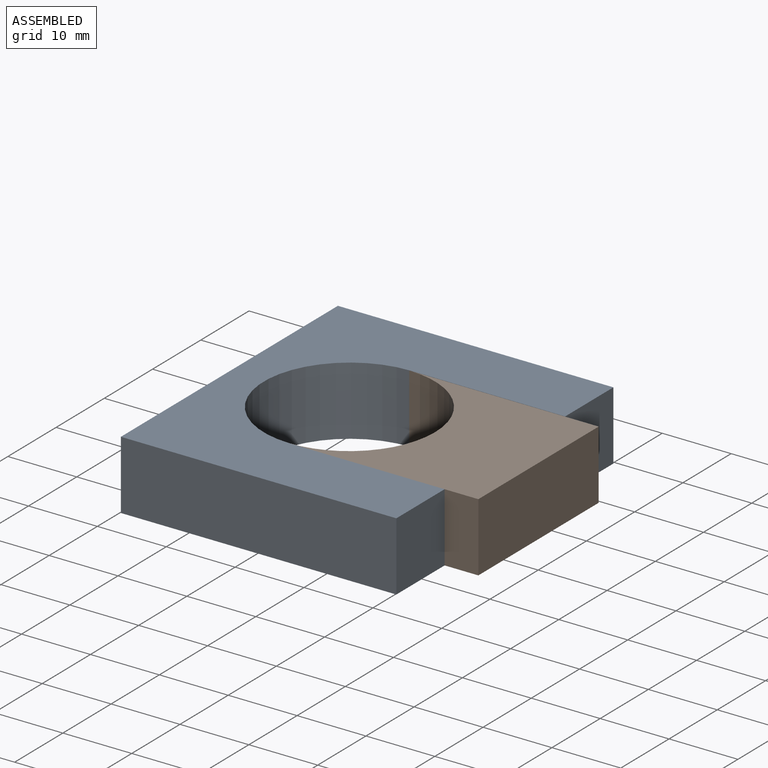
[diagram: assembled view]
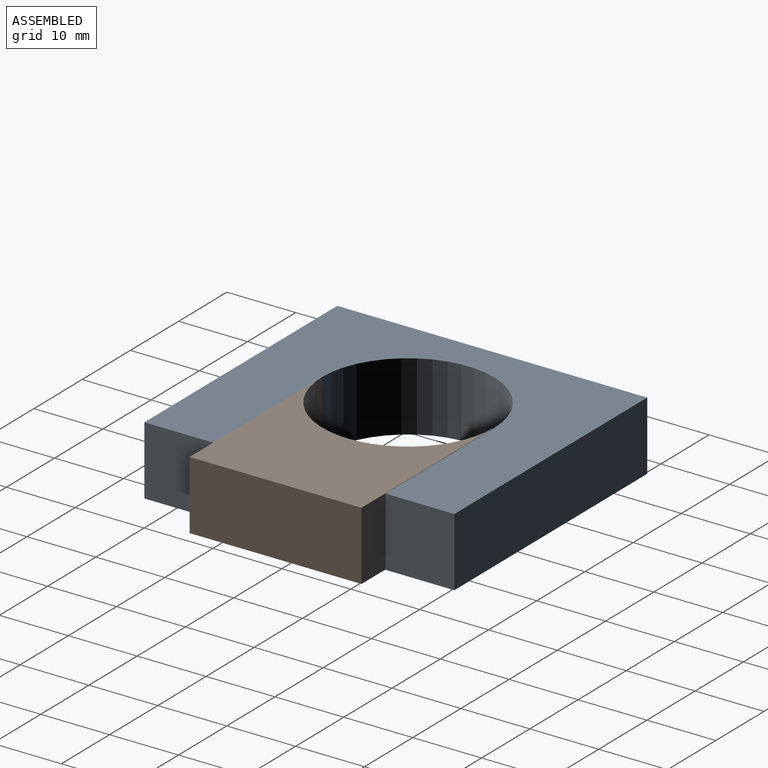
[diagram: assembled view, second angle]
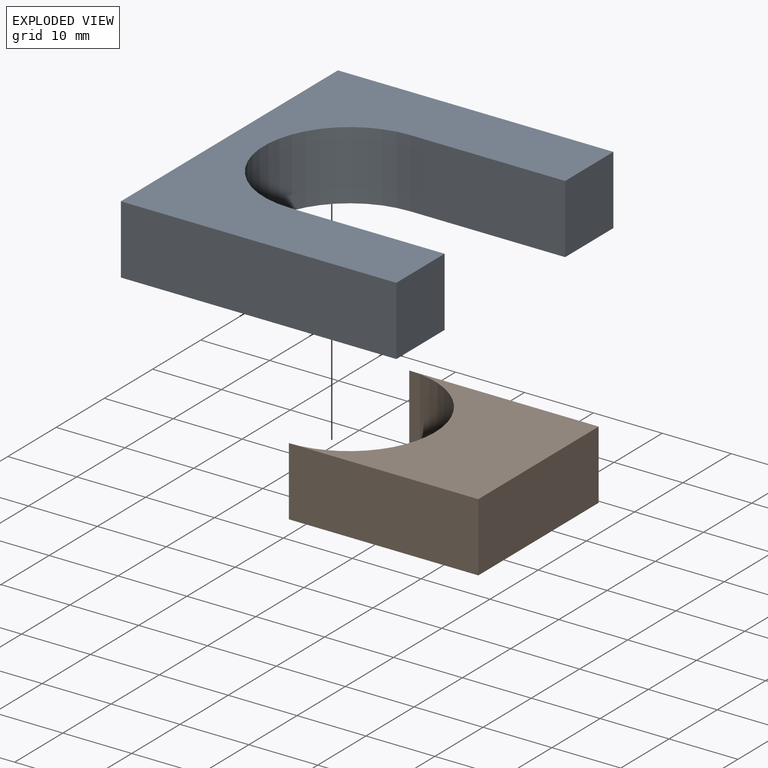
[diagram: exploded view]
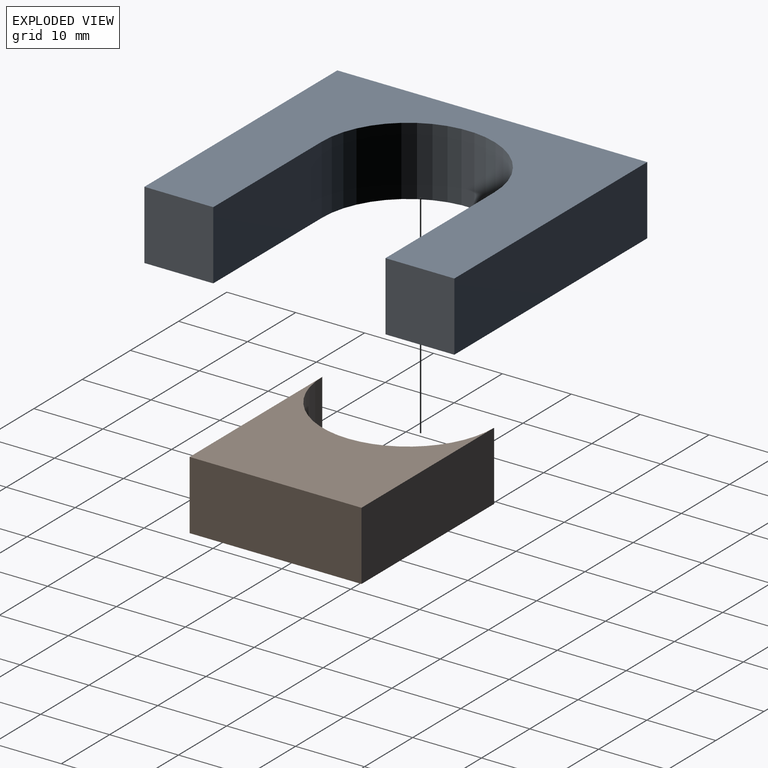
[diagram: exploded view, second angle]
ASSEMBLY  parts=2 mates=2
PART A: 10 faces, bbox 40x45x10 mm
  f0: plane 10x10mm, normal (1,0,0), area 100mm2, adj f1,f7,f8,f9
  f1: plane 22.5x10mm, normal (0,1,0), area 225mm2, adj f0,f2,f8,f9
  f2: cylinder r=12.5mm len=25mm, axis (0,0,-1), area 392.7mm2, adj f1,f3,f8,f9
  f3: plane 22.5x10mm, normal (0,-1,0), area 225mm2, adj f2,f4,f8,f9
  f4: plane 10x10mm, normal (1,0,0), area 100mm2, adj f3,f5,f8,f9
  f5: plane 40x10mm, normal (0,1,0), area 400mm2, adj f4,f6,f8,f9
  f6: plane 45x10mm, normal (-1,0,0), area 450mm2, adj f5,f7,f8,f9
  f7: plane 40x10mm, normal (0,-1,0), area 400mm2, adj f0,f6,f8,f9
  f8: plane 45x40mm, normal (0,0,1), area 992.1mm2, adj f0,f1,f2,f3,f4,f5,f6,f7
  f9: plane 45x40mm, normal (0,0,-1), area 992.1mm2, adj f0,f1,f2,f3,f4,f5,f6,f7
PART B: 6 faces, bbox 25x27.5x10 mm
  f0: plane 27.5x10mm, normal (-1,0,0), area 275mm2, adj f1,f3,f4,f5
  f1: plane 24.95x10mm, normal (0,-1,0), area 249.5mm2, adj f0,f2,f4,f5
  f2: plane 27.5x10mm, normal (1,0,0), area 275mm2, adj f1,f3,f4,f5
  f3: cylinder r=12.47mm len=24.95mm, axis (0,0,-1), area 391.9mm2, adj f0,f2,f4,f5
  f4: plane 27.5x24.95mm, normal (0,0,1), area 441.7mm2, adj f0,f1,f2,f3
  f5: plane 27.5x24.95mm, normal (0,0,-1), area 441.7mm2, adj f0,f1,f2,f3
PLACE A t=(-3.64,4.01,-7.95)mm
PLACE B rot(axis=(0,0,1),90deg) t=(1.26,4.67,-7.95)mm
MATE planar B.f4 <-> A.f8  axis (0,0,1) through (-7.81,3.98,2.05)mm
MATE planar B.f0 <-> A.f1  axis (0,-1,0) through (-12.49,-8.49,-2.95)mm
